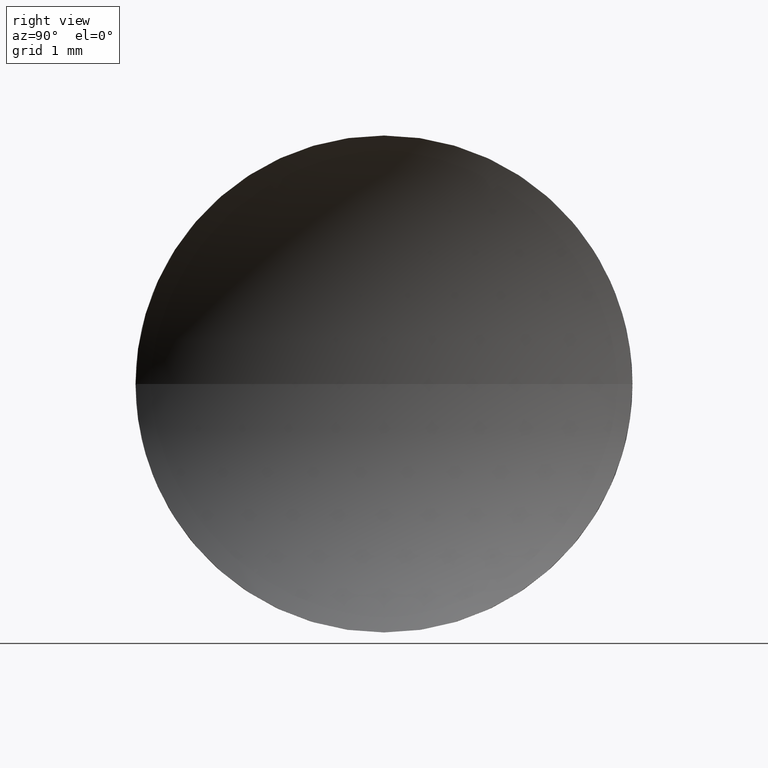
[diagram: clean part render]
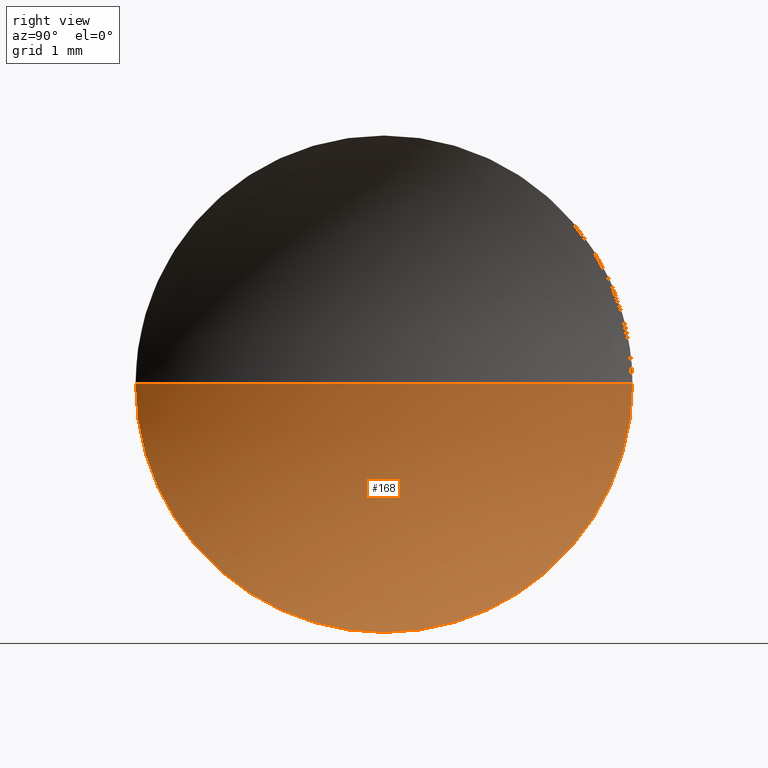
[diagram: same view with one face highlighted and labeled with its STEP entity id]
A machine part, right view. The second image highlights one B-rep face of the part: STEP entity #168.
In plain terms, the highlighted spherical surface has radius 5.17 mm.
Its self-contained STEP definition (entity closure, byte-faithful):
#3 = FACE_OUTER_BOUND ( 'NONE', #4, .T. ) ;
#4 = EDGE_LOOP ( 'NONE', ( #166, #107, #28, #45 ) ) ;
#5 = CARTESIAN_POINT ( 'NONE',  ( 28.97926883257449000, 13.03112609140304000, 0.0000000000000000000 ) ) ;
#6 = DIRECTION ( 'NONE',  ( 0.0000000000000000000, 0.0000000000000000000, -1.000000000000000000 ) ) ;
#10 = CIRCLE ( 'NONE', #96, 5.170000000000000800 ) ;
#13 = DIRECTION ( 'NONE',  ( 0.0000000000000000000, -1.224646799147353200E-016, 1.000000000000000000 ) ) ;
#20 = CIRCLE ( 'NONE', #145, 5.169999999999999000 ) ;
#24 = DIRECTION ( 'NONE',  ( -1.000000000000000000, -0.0000000000000000000, -0.0000000000000000000 ) ) ;
#25 = DIRECTION ( 'NONE',  ( 0.0000000000000000000, 0.0000000000000000000, 1.000000000000000000 ) ) ;
#28 = ORIENTED_EDGE ( 'NONE', *, *, #172, .F. ) ;
#32 = CARTESIAN_POINT ( 'NONE',  ( 28.97926883257449000, 13.03112609140304000, 0.0000000000000000000 ) ) ;
#36 = CARTESIAN_POINT ( 'NONE',  ( 24.87970788047242400, 13.03112609140304000, 0.0000000000000000000 ) ) ;
#38 = VERTEX_POINT ( 'NONE', #177 ) ;
#45 = ORIENTED_EDGE ( 'NONE', *, *, #79, .F. ) ;
#68 = CARTESIAN_POINT ( 'NONE',  ( 24.87970788047242400, 9.881126091403041700, 0.0000000000000000000 ) ) ;
#74 = DIRECTION ( 'NONE',  ( 0.0000000000000000000, -1.000000000000000000, 0.0000000000000000000 ) ) ;
#76 = CARTESIAN_POINT ( 'NONE',  ( 24.87970788047242400, 16.18112609140303700, 3.857637417314161200E-016 ) ) ;
#79 = EDGE_CURVE ( 'NONE', #38, #123, #98, .T. ) ;
#81 = DIRECTION ( 'NONE',  ( -1.000000000000000000, -0.0000000000000000000, -0.0000000000000000000 ) ) ;
#84 = CARTESIAN_POINT ( 'NONE',  ( 28.97926883257449000, 13.03112609140304000, 0.0000000000000000000 ) ) ;
#91 = DIRECTION ( 'NONE',  ( 0.0000000000000000000, 0.0000000000000000000, 1.000000000000000000 ) ) ;
#92 = AXIS2_PLACEMENT_3D ( 'NONE', #5, #91, #74 ) ;
#93 = EDGE_CURVE ( 'NONE', #176, #38, #164, .T. ) ;
#96 = AXIS2_PLACEMENT_3D ( 'NONE', #32, #6, #130 ) ;
#98 = CIRCLE ( 'NONE', #106, 3.149999999999998100 ) ;
#99 = EDGE_CURVE ( 'NONE', #176, #109, #20, .T. ) ;
#106 = AXIS2_PLACEMENT_3D ( 'NONE', #36, #81, #135 ) ;
#107 = ORIENTED_EDGE ( 'NONE', *, *, #99, .T. ) ;
#109 = VERTEX_POINT ( 'NONE', #165 ) ;
#123 = VERTEX_POINT ( 'NONE', #68 ) ;
#126 = DIRECTION ( 'NONE',  ( 0.0000000000000000000, -1.000000000000000000, -1.224646799147353200E-016 ) ) ;
#130 = DIRECTION ( 'NONE',  ( -1.000000000000000000, 0.0000000000000000000, 0.0000000000000000000 ) ) ;
#135 = DIRECTION ( 'NONE',  ( 0.0000000000000000000, 0.0000000000000000000, 1.000000000000000000 ) ) ;
#145 = AXIS2_PLACEMENT_3D ( 'NONE', #84, #13, #126 ) ;
#161 = SPHERICAL_SURFACE ( 'NONE', #92, 5.169999999999999000 ) ;
#164 = CIRCLE ( 'NONE', #167, 3.149999999999998100 ) ;
#165 = CARTESIAN_POINT ( 'NONE',  ( 23.80926883257448900, 13.03112609140304000, 0.0000000000000000000 ) ) ;
#166 = ORIENTED_EDGE ( 'NONE', *, *, #93, .F. ) ;
#167 = AXIS2_PLACEMENT_3D ( 'NONE', #186, #24, #25 ) ;
#168 = ADVANCED_FACE ( 'NONE', ( #3 ), #161, .F. ) ;
#172 = EDGE_CURVE ( 'NONE', #123, #109, #10, .T. ) ;
#176 = VERTEX_POINT ( 'NONE', #76 ) ;
#177 = CARTESIAN_POINT ( 'NONE',  ( 24.87970788047242400, 13.03112609140304000, -3.149999999999998100 ) ) ;
#186 = CARTESIAN_POINT ( 'NONE',  ( 24.87970788047242400, 13.03112609140304000, 0.0000000000000000000 ) ) ;